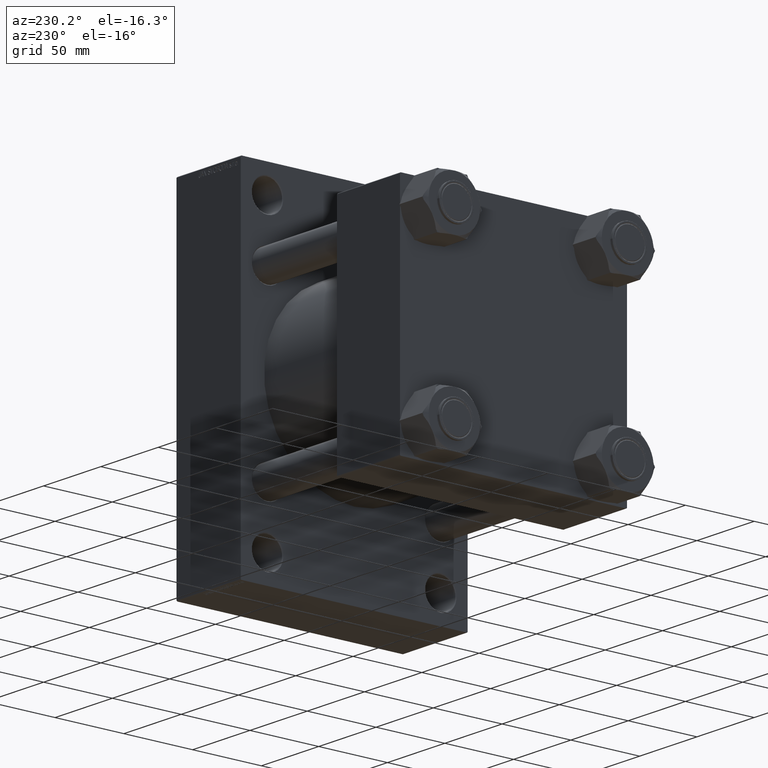
[diagram: clean part render]
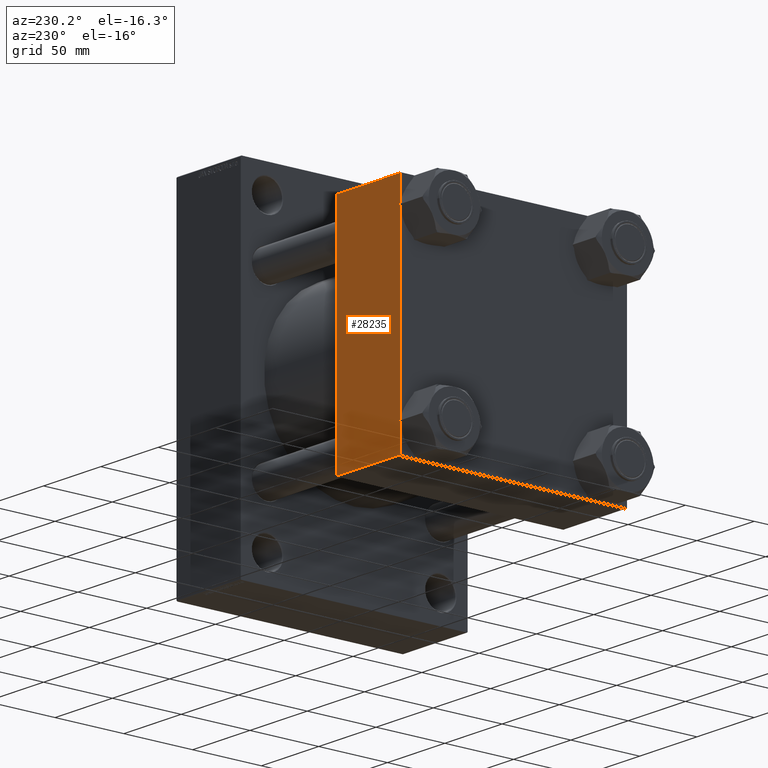
[diagram: same view with one face highlighted and labeled with its STEP entity id]
A machine part, auxiliary view. The second image highlights one B-rep face of the part: STEP entity #28235.
In plain terms, the highlighted planar face has unit normal (0, 1, 0).
Its self-contained STEP definition (entity closure, byte-faithful):
#5682 = CARTESIAN_POINT ( 'NONE',  ( 55.00000000000000000, 82.50000000000002842, 82.50000000000002842 ) ) ;
#6133 = AXIS2_PLACEMENT_3D ( 'NONE', #5682, #39332, #43188 ) ;
#7905 = CARTESIAN_POINT ( 'NONE',  ( 55.00000000000000000, 82.50000000000002842, 82.50000000000002842 ) ) ;
#7982 = VERTEX_POINT ( 'NONE', #38351 ) ;
#8060 = VECTOR ( 'NONE', #39334, 1000.000000000000000 ) ;
#12900 = EDGE_CURVE ( 'NONE', #36548, #20477, #17305, .T. ) ;
#13417 = LINE ( 'NONE', #35203, #43900 ) ;
#13683 = VECTOR ( 'NONE', #15352, 1000.000000000000000 ) ;
#15352 = DIRECTION ( 'NONE',  ( 1.000000000000000000, 0.000000000000000000, 0.000000000000000000 ) ) ;
#16275 = CARTESIAN_POINT ( 'NONE',  ( 55.00000000000000000, 82.50000000000002842, -82.00000000000000000 ) ) ;
#16726 = EDGE_LOOP ( 'NONE', ( #34450, #34754, #19003, #25848 ) ) ;
#17305 = LINE ( 'NONE', #23846, #8060 ) ;
#19003 = ORIENTED_EDGE ( 'NONE', *, *, #25756, .F. ) ;
#19464 = LINE ( 'NONE', #45550, #13683 ) ;
#20477 = VERTEX_POINT ( 'NONE', #24808 ) ;
#20703 = CARTESIAN_POINT ( 'NONE',  ( 0.000000000000000000, 82.50000000000002842, 82.00000000000005684 ) ) ;
#21088 = EDGE_CURVE ( 'NONE', #7982, #36548, #26771, .T. ) ;
#23606 = EDGE_CURVE ( 'NONE', #28258, #7982, #19464, .T. ) ;
#23846 = CARTESIAN_POINT ( 'NONE',  ( 55.00000000000000000, 82.50000000000002842, -82.00000000000000000 ) ) ;
#24562 = PLANE ( 'NONE',  #6133 ) ;
#24808 = CARTESIAN_POINT ( 'NONE',  ( 0.000000000000000000, 82.50000000000002842, -82.00000000000000000 ) ) ;
#25756 = EDGE_CURVE ( 'NONE', #28258, #20477, #13417, .T. ) ;
#25848 = ORIENTED_EDGE ( 'NONE', *, *, #23606, .T. ) ;
#26771 = LINE ( 'NONE', #7905, #43871 ) ;
#28235 = ADVANCED_FACE ( 'NONE', ( #46783 ), #24562, .T. ) ;
#28258 = VERTEX_POINT ( 'NONE', #20703 ) ;
#34450 = ORIENTED_EDGE ( 'NONE', *, *, #21088, .T. ) ;
#34496 = DIRECTION ( 'NONE',  ( 0.000000000000000000, 0.000000000000000000, -1.000000000000000000 ) ) ;
#34754 = ORIENTED_EDGE ( 'NONE', *, *, #12900, .T. ) ;
#35203 = CARTESIAN_POINT ( 'NONE',  ( 0.000000000000000000, 82.50000000000002842, 82.50000000000002842 ) ) ;
#36548 = VERTEX_POINT ( 'NONE', #16275 ) ;
#38351 = CARTESIAN_POINT ( 'NONE',  ( 55.00000000000000000, 82.50000000000002842, 82.00000000000005684 ) ) ;
#39332 = DIRECTION ( 'NONE',  ( -0.000000000000000000, 1.000000000000000000, 0.000000000000000000 ) ) ;
#39334 = DIRECTION ( 'NONE',  ( -1.000000000000000000, 0.000000000000000000, 0.000000000000000000 ) ) ;
#43188 = DIRECTION ( 'NONE',  ( 0.000000000000000000, -0.000000000000000000, 1.000000000000000000 ) ) ;
#43871 = VECTOR ( 'NONE', #45381, 1000.000000000000000 ) ;
#43900 = VECTOR ( 'NONE', #34496, 1000.000000000000000 ) ;
#45381 = DIRECTION ( 'NONE',  ( 0.000000000000000000, 0.000000000000000000, -1.000000000000000000 ) ) ;
#45550 = CARTESIAN_POINT ( 'NONE',  ( 55.00000000000000000, 82.50000000000002842, 82.00000000000005684 ) ) ;
#46783 = FACE_OUTER_BOUND ( 'NONE', #16726, .T. ) ;